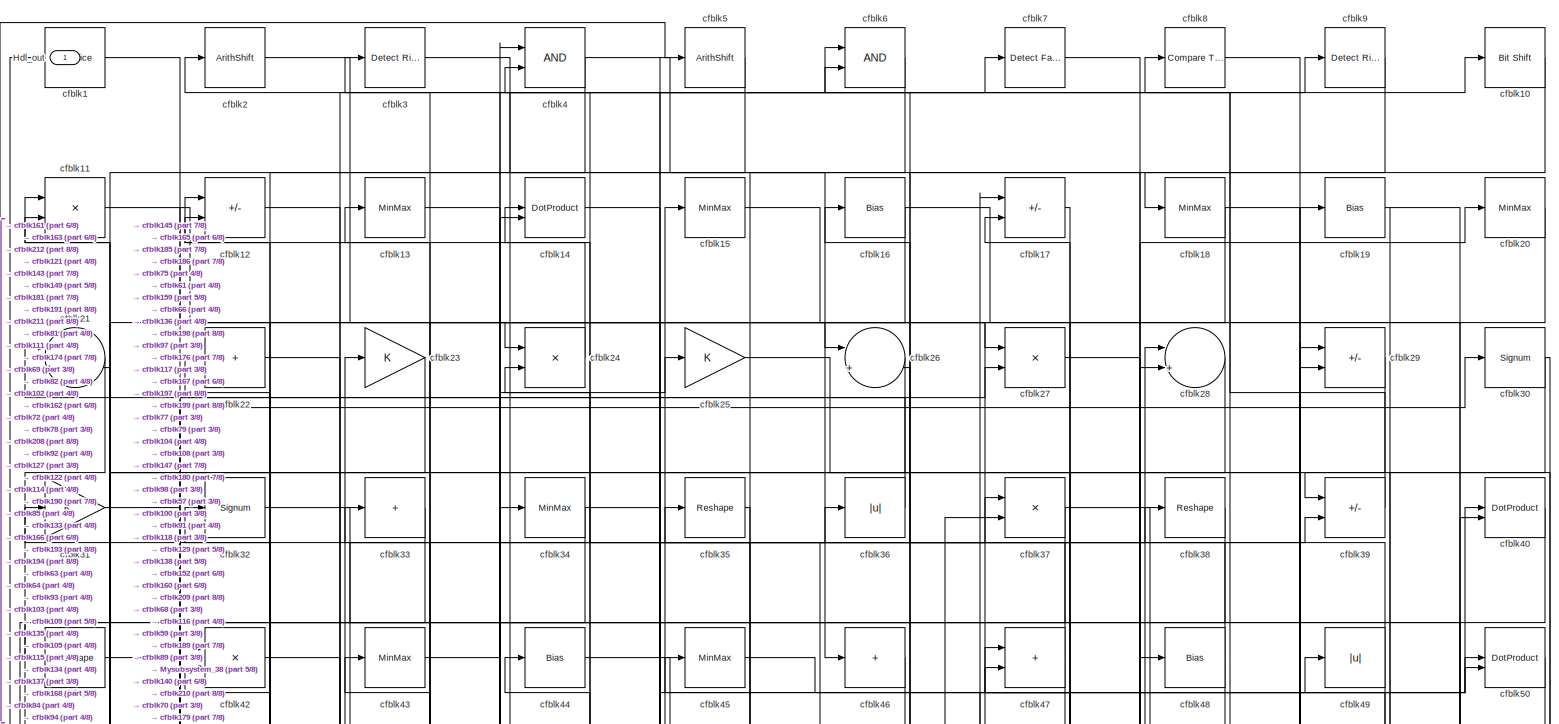
[diagram: root canvas - part 1/8, full width, top band]
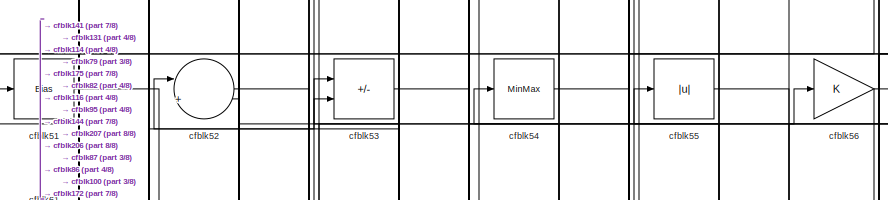
[diagram: root canvas - part 2/8, top left region]
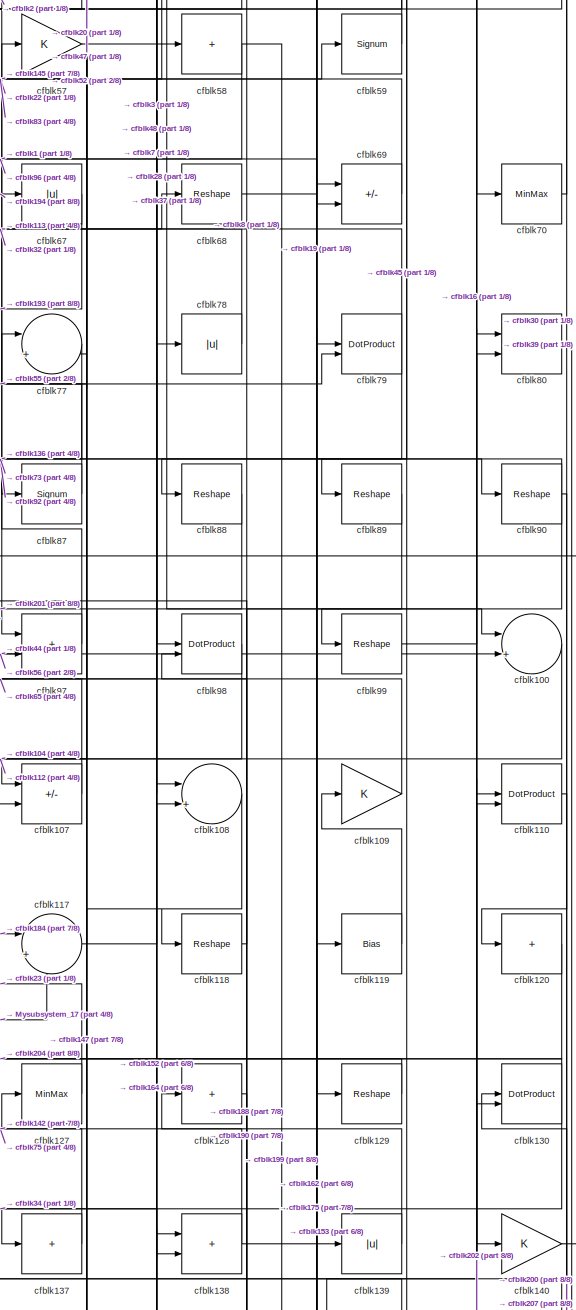
[diagram: root canvas - part 3/8, middle right region]
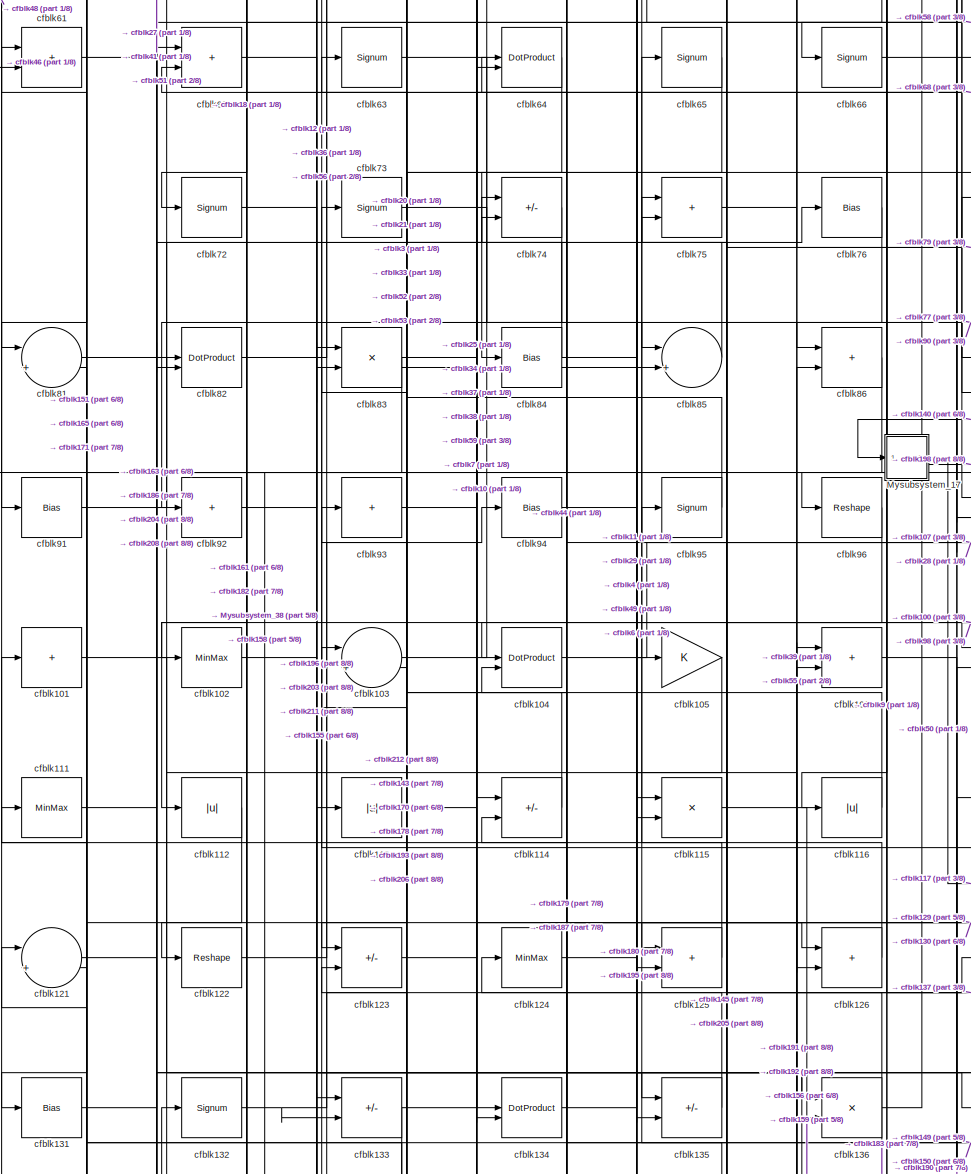
[diagram: root canvas - part 4/8, middle left region]
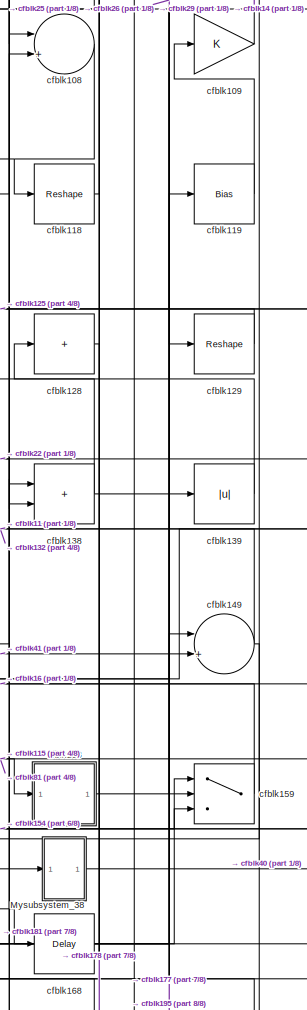
[diagram: root canvas - part 5/8, middle right region]
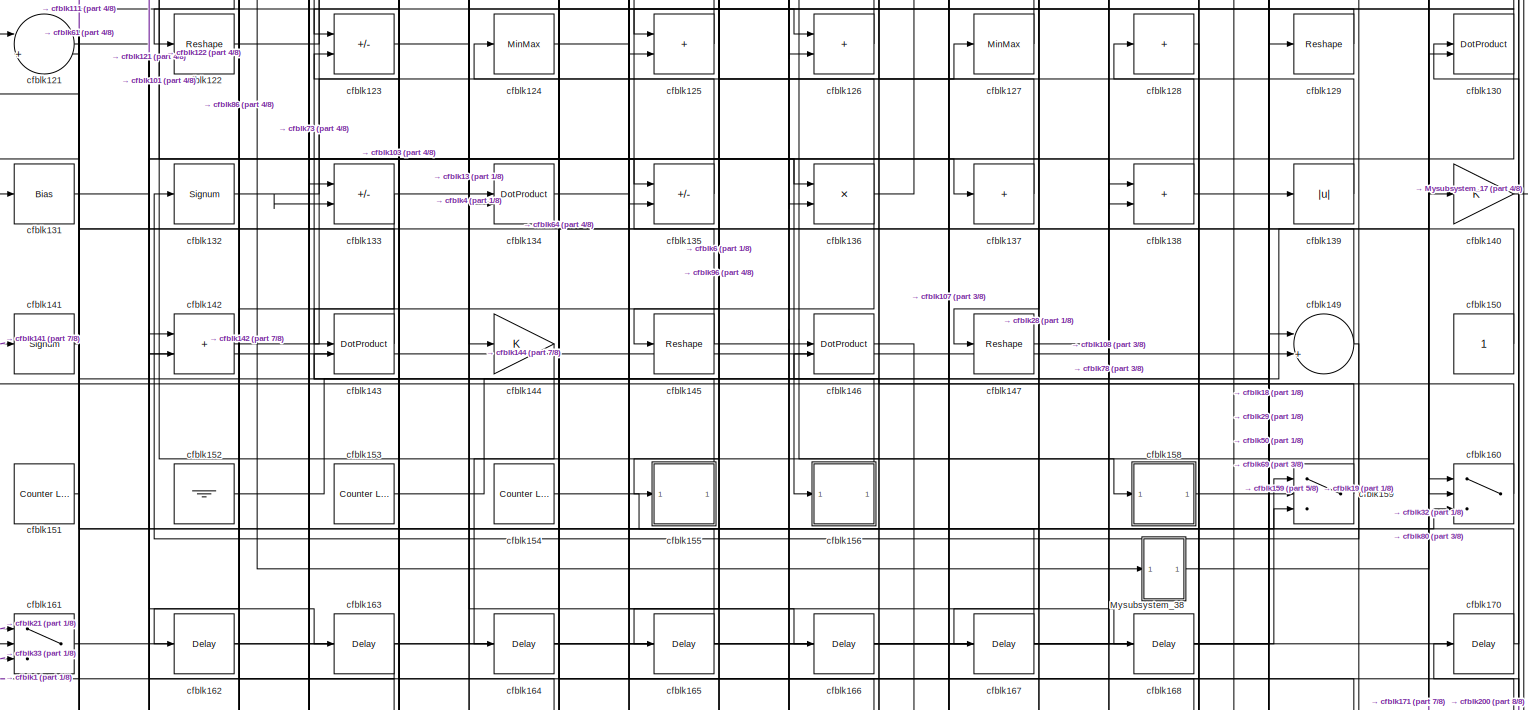
[diagram: root canvas - part 6/8, full width, middle band]
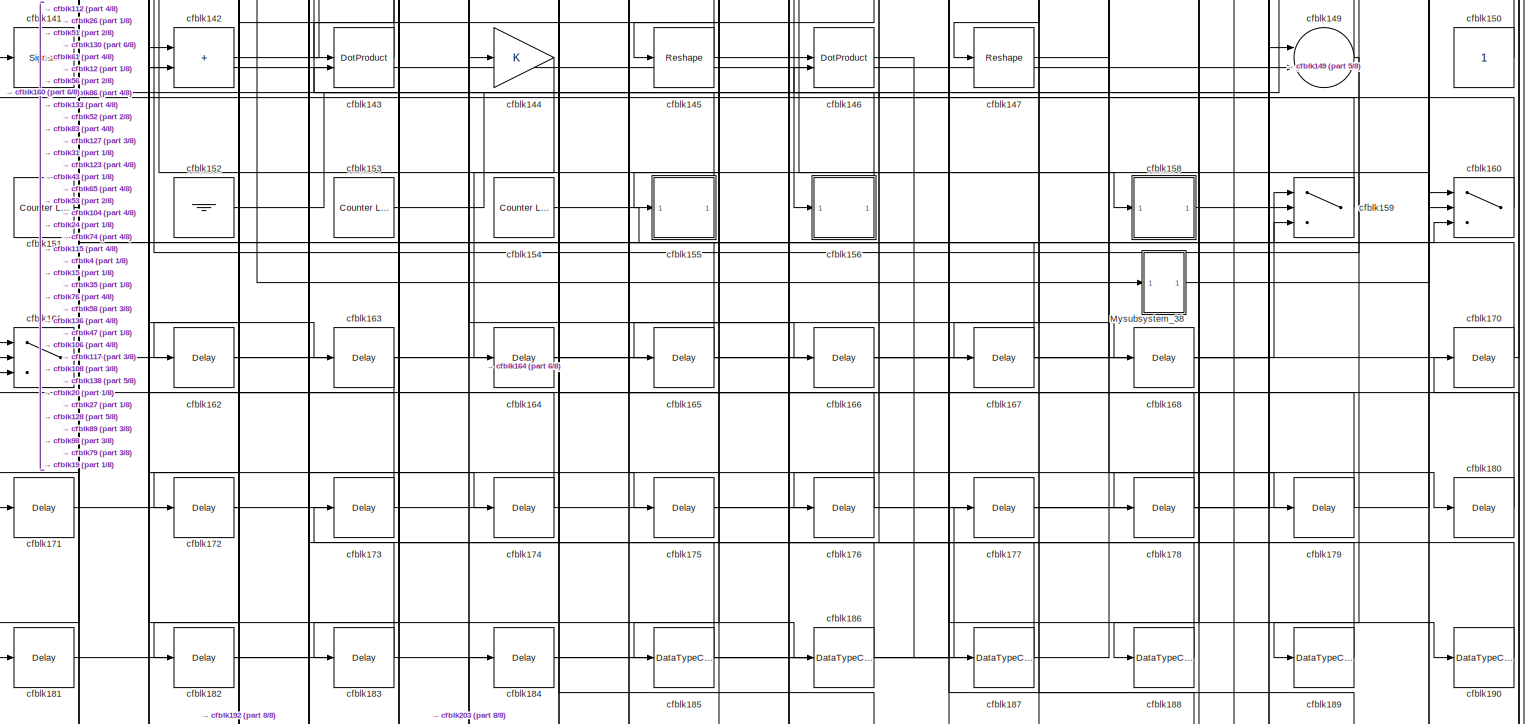
[diagram: root canvas - part 7/8, full width, bottom band]
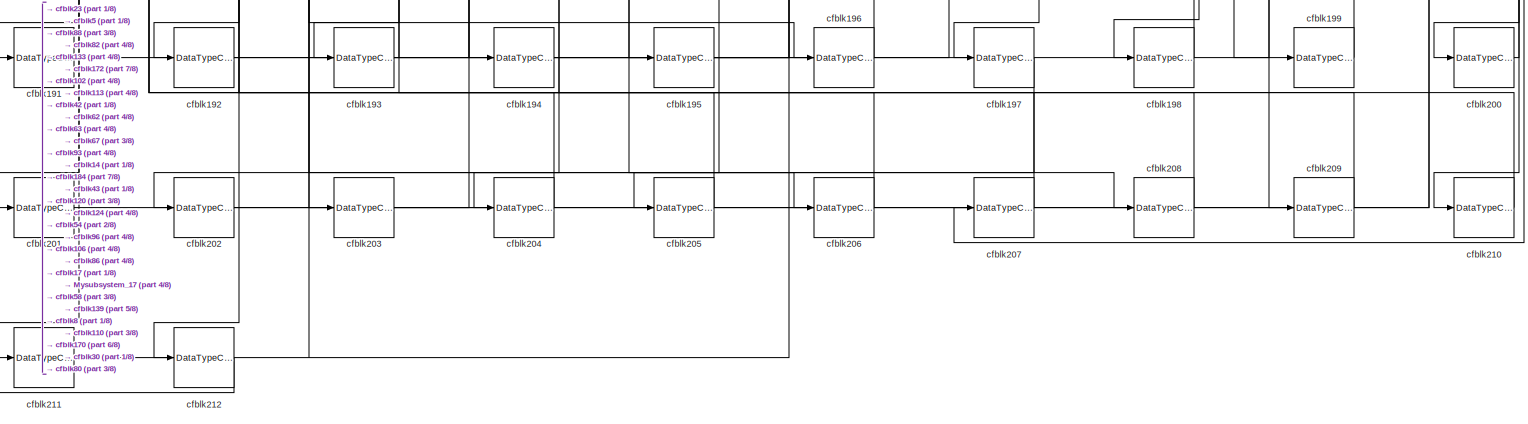
[diagram: root canvas - part 8/8, full width, bottom band]
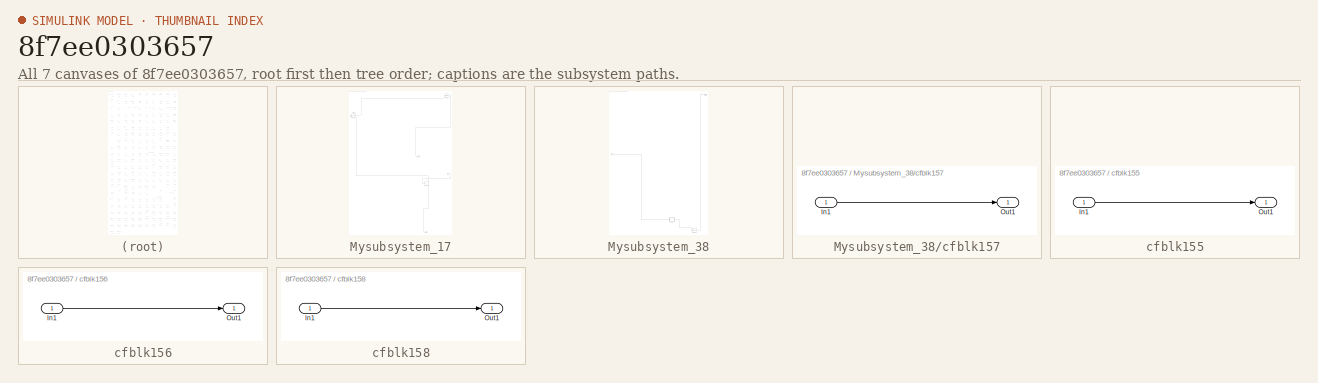
[diagram: thumbnail index - all 7 canvases of the model, root first then tree order]
MODEL slx_8f7ee0303657
KIND model
CONFIG AbsTol = auto
CONFIG EnableMultiTasking = off
CONFIG FixedStep = auto
CONFIG MaxStep = auto
CONFIG MinStep = auto
CONFIG RelTol = 1e-3
CONFIG SampleTimeConstraint = Unconstrained
CONFIG SolverName = VariableStepAuto
CONFIG StartTime = 0.0
CONFIG StopTime = 10.0
BLOCK [Outport] Hdl_out
  OutDataTypeStr = uint8
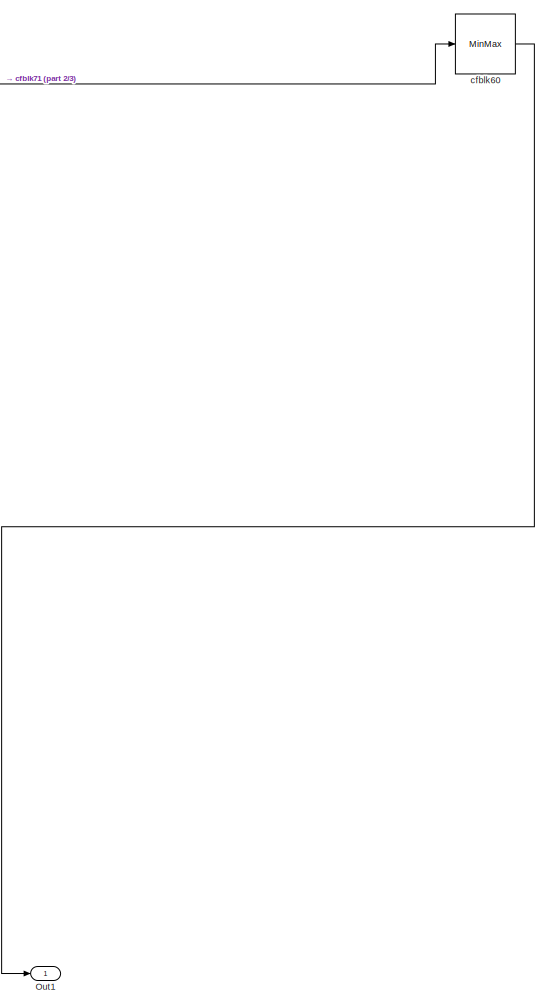
[diagram: Mysubsystem_17 - part 1/3, top right region]
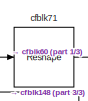
[diagram: Mysubsystem_17 - part 2/3, top left region]
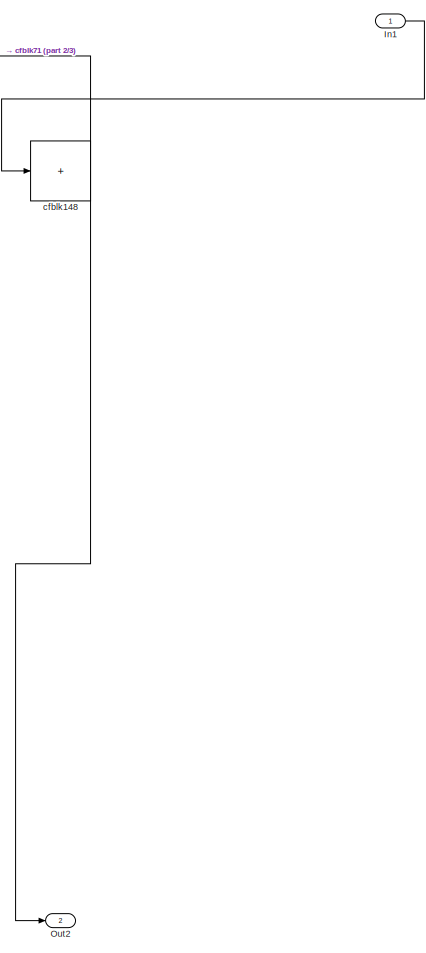
[diagram: Mysubsystem_17 - part 3/3, bottom right region]
BLOCK [SubSystem] Mysubsystem_17
  RTWFcnName = Mysubsystem_17
  RTWFcnNameOpts = User specified
  RTWFileNameOpts = Use function name
  RTWSystemCode = Reusable function
  TreatAsAtomicUnit = on
BLOCK [Inport] Mysubsystem_17/In1
BLOCK [Outport] Mysubsystem_17/Out1
BLOCK [Outport] Mysubsystem_17/Out2
  Port = 2
BLOCK [Sum] Mysubsystem_17/cfblk148
  IconShape = rectangular
  Inputs = +
BLOCK [MinMax] Mysubsystem_17/cfblk60
BLOCK [Reshape] Mysubsystem_17/cfblk71
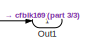
[diagram: Mysubsystem_38 - part 1/3, top right region]
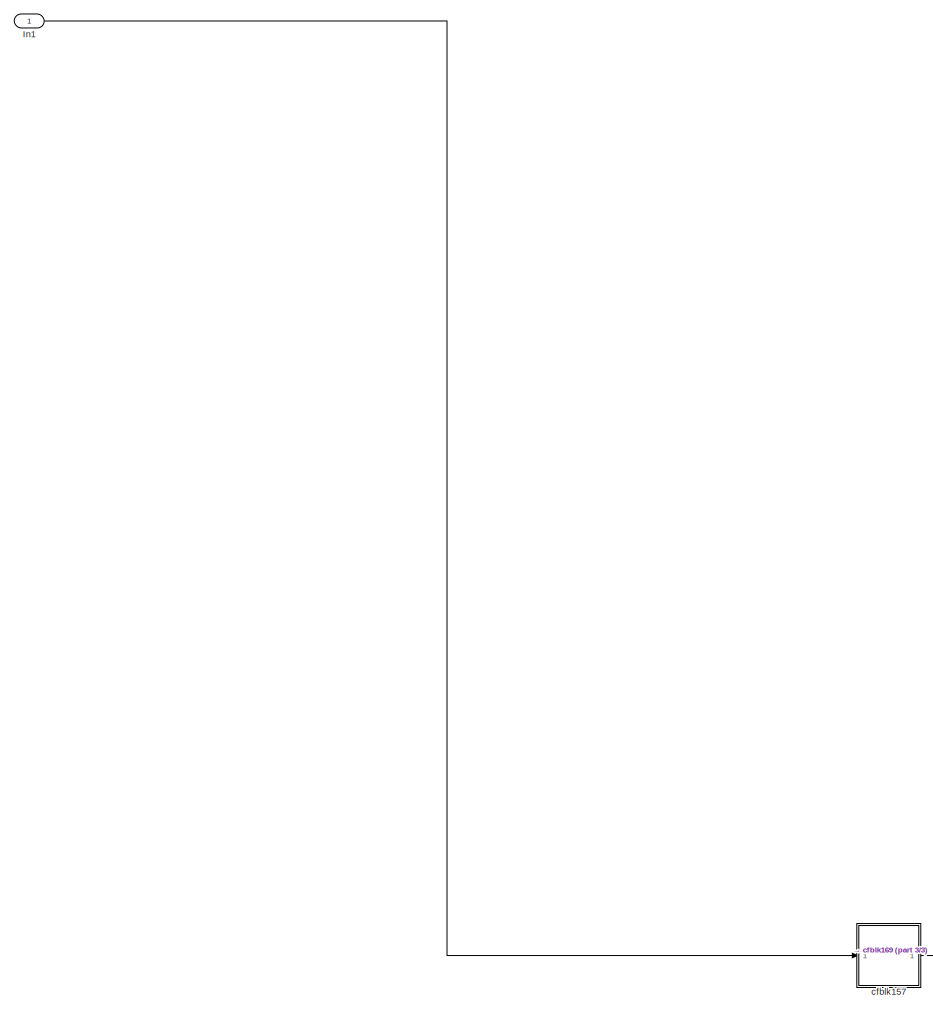
[diagram: Mysubsystem_38 - part 2/3, bottom center region]
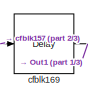
[diagram: Mysubsystem_38 - part 3/3, bottom right region]
BLOCK [SubSystem] Mysubsystem_38
  RTWFcnName = Mysubsystem_38
  RTWFcnNameOpts = User specified
  RTWFileNameOpts = Use function name
  RTWSystemCode = Reusable function
  TreatAsAtomicUnit = on
BLOCK [Inport] Mysubsystem_38/In1
BLOCK [Outport] Mysubsystem_38/Out1
BLOCK [SubSystem] Mysubsystem_38/cfblk157
  LibrarySourceBlock = hdlsllib/Ports &\nSubsystems/Subsystem
BLOCK [Inport] Mysubsystem_38/cfblk157/In1
BLOCK [Outport] Mysubsystem_38/cfblk157/Out1
BLOCK [Delay] Mysubsystem_38/cfblk169
  InputPortMap = u0
  SampleTime = 1
BLOCK [Reference] cfblk1  REF=hdlsllib/Logic and Bit
Operations/Bit Slice
  SourceBlock = hdlsllib/Logic and Bit\nOperations/Bit Slice
  SourceType = Bit Slice
BLOCK [Reference] cfblk10  REF=hdlsllib/Logic and Bit
Operations/Bit Shift
  SourceBlock = hdlsllib/Logic and Bit\nOperations/Bit Shift
  SourceType = Bit Shift
BLOCK [Sum] cfblk100
  Inputs = |++
  OutDataTypeStr = uint8
BLOCK [Sum] cfblk101
  IconShape = rectangular
  Inputs = +
  OutDataTypeStr = uint8
BLOCK [MinMax] cfblk102
  OutDataTypeStr = uint8
BLOCK [Sum] cfblk103
  Inputs = |++
  OutDataTypeStr = uint8
BLOCK [DotProduct] cfblk104
  OutDataTypeStr = uint8
BLOCK [Gain] cfblk105
  OutDataTypeStr = uint8
BLOCK [Sum] cfblk106
  IconShape = rectangular
  OutDataTypeStr = uint8
BLOCK [Sum] cfblk107
  IconShape = rectangular
  Inputs = +-
  OutDataTypeStr = uint8
BLOCK [Sum] cfblk108
  Inputs = |++
  OutDataTypeStr = uint8
BLOCK [Gain] cfblk109
  OutDataTypeStr = uint8
BLOCK [Product] cfblk11
  Inputs = */
  OutDataTypeStr = uint8
  RndMeth = Zero
  SaturateOnIntegerOverflow = on
BLOCK [DotProduct] cfblk110
  OutDataTypeStr = uint8
BLOCK [MinMax] cfblk111
  OutDataTypeStr = uint8
BLOCK [Abs] cfblk112
  OutDataTypeStr = uint8
  SaturateOnIntegerOverflow = off
BLOCK [Abs] cfblk113
  OutDataTypeStr = uint8
  SaturateOnIntegerOverflow = off
BLOCK [Sum] cfblk114
  IconShape = rectangular
  Inputs = +-
  OutDataTypeStr = uint8
BLOCK [Product] cfblk115
  Inputs = */
  OutDataTypeStr = uint8
  RndMeth = Zero
  SaturateOnIntegerOverflow = on
BLOCK [Abs] cfblk116
  OutDataTypeStr = uint8
  SaturateOnIntegerOverflow = off
BLOCK [Sum] cfblk117
  Inputs = |++
  OutDataTypeStr = uint8
BLOCK [Reshape] cfblk118
BLOCK [Bias] cfblk119
  Bias = 0.0
  SaturateOnIntegerOverflow = off
BLOCK [Sum] cfblk12
  IconShape = rectangular
  Inputs = +-
  OutDataTypeStr = uint8
BLOCK [Sum] cfblk120
  IconShape = rectangular
  Inputs = +
  OutDataTypeStr = uint8
BLOCK [Sum] cfblk121
  Inputs = |++
  OutDataTypeStr = uint8
BLOCK [Reshape] cfblk122
BLOCK [Sum] cfblk123
  IconShape = rectangular
  Inputs = +-
  OutDataTypeStr = uint8
BLOCK [MinMax] cfblk124
  OutDataTypeStr = uint8
BLOCK [Sum] cfblk125
  IconShape = rectangular
  OutDataTypeStr = uint8
BLOCK [Sum] cfblk126
  IconShape = rectangular
  OutDataTypeStr = uint8
BLOCK [MinMax] cfblk127
  OutDataTypeStr = uint8
BLOCK [Sum] cfblk128
  IconShape = rectangular
  Inputs = +
  OutDataTypeStr = uint8
BLOCK [Reshape] cfblk129
BLOCK [MinMax] cfblk13
  OutDataTypeStr = uint8
BLOCK [DotProduct] cfblk130
  OutDataTypeStr = uint8
BLOCK [Bias] cfblk131
  Bias = 0.0
  SaturateOnIntegerOverflow = off
BLOCK [Signum] cfblk132
BLOCK [Sum] cfblk133
  IconShape = rectangular
  Inputs = +-
  OutDataTypeStr = uint8
BLOCK [DotProduct] cfblk134
  OutDataTypeStr = uint8
BLOCK [Sum] cfblk135
  IconShape = rectangular
  Inputs = +-
  OutDataTypeStr = uint8
BLOCK [Product] cfblk136
  Inputs = */
  OutDataTypeStr = uint8
  RndMeth = Zero
  SaturateOnIntegerOverflow = on
BLOCK [Sum] cfblk137
  IconShape = rectangular
  Inputs = +
  OutDataTypeStr = uint8
BLOCK [Sum] cfblk138
  IconShape = rectangular
  OutDataTypeStr = uint8
BLOCK [Abs] cfblk139
  OutDataTypeStr = uint8
  SaturateOnIntegerOverflow = off
BLOCK [DotProduct] cfblk14
  OutDataTypeStr = uint8
BLOCK [Gain] cfblk140
  OutDataTypeStr = uint8
BLOCK [Signum] cfblk141
BLOCK [Sum] cfblk142
  IconShape = rectangular
  OutDataTypeStr = uint8
BLOCK [DotProduct] cfblk143
  OutDataTypeStr = uint8
BLOCK [Gain] cfblk144
  OutDataTypeStr = uint8
BLOCK [Reshape] cfblk145
BLOCK [DotProduct] cfblk146
  OutDataTypeStr = uint8
BLOCK [Reshape] cfblk147
BLOCK [Sum] cfblk149
  Inputs = |++
  OutDataTypeStr = uint8
BLOCK [MinMax] cfblk15
  OutDataTypeStr = uint8
BLOCK [Constant] cfblk150
  OutDataTypeStr = uint8
  SampleTime = -1
BLOCK [Reference] cfblk151  REF=hdlsllib/Sources/Counter
Limited
  SourceBlock = hdlsllib/Sources/Counter\nLimited
  SourceType = Counter Limited
BLOCK [Ground] cfblk152
BLOCK [Reference] cfblk153  REF=hdlsllib/Sources/Counter
Limited
  SourceBlock = hdlsllib/Sources/Counter\nLimited
  SourceType = Counter Limited
BLOCK [Reference] cfblk154  REF=hdlsllib/Sources/Counter
Limited
  SourceBlock = hdlsllib/Sources/Counter\nLimited
  SourceType = Counter Limited
BLOCK [SubSystem] cfblk155
  LibrarySourceBlock = hdlsllib/Ports &\nSubsystems/Subsystem
BLOCK [Inport] cfblk155/In1
BLOCK [Outport] cfblk155/Out1
BLOCK [SubSystem] cfblk156
  LibrarySourceBlock = hdlsllib/Ports &\nSubsystems/Subsystem
BLOCK [Inport] cfblk156/In1
BLOCK [Outport] cfblk156/Out1
BLOCK [SubSystem] cfblk158
  LibrarySourceBlock = hdlsllib/Ports &\nSubsystems/Subsystem
BLOCK [Inport] cfblk158/In1
BLOCK [Outport] cfblk158/Out1
BLOCK [Switch] cfblk159
  InputSameDT = off
  OutDataTypeStr = uint8
  SaturateOnIntegerOverflow = off
BLOCK [Bias] cfblk16
  Bias = 0.0
  SaturateOnIntegerOverflow = off
BLOCK [Switch] cfblk160
  InputSameDT = off
  OutDataTypeStr = uint8
  SaturateOnIntegerOverflow = off
BLOCK [Switch] cfblk161
  InputSameDT = off
  OutDataTypeStr = uint8
  SaturateOnIntegerOverflow = off
BLOCK [Delay] cfblk162
  InputPortMap = u0
  SampleTime = 1
BLOCK [Delay] cfblk163
  InputPortMap = u0
  SampleTime = 1
BLOCK [Delay] cfblk164
  InputPortMap = u0
  SampleTime = 1
BLOCK [Delay] cfblk165
  InputPortMap = u0
  SampleTime = 1
BLOCK [Delay] cfblk166
  InputPortMap = u0
  SampleTime = 1
BLOCK [Delay] cfblk167
  InputPortMap = u0
  SampleTime = 1
BLOCK [Delay] cfblk168
  InputPortMap = u0
  SampleTime = 1
BLOCK [Sum] cfblk17
  IconShape = rectangular
  Inputs = +-
  OutDataTypeStr = uint8
BLOCK [Delay] cfblk170
  InputPortMap = u0
  SampleTime = 1
BLOCK [Delay] cfblk171
  InputPortMap = u0
  SampleTime = 1
BLOCK [Delay] cfblk172
  InputPortMap = u0
  SampleTime = 1
BLOCK [Delay] cfblk173
  InputPortMap = u0
  SampleTime = 1
BLOCK [Delay] cfblk174
  InputPortMap = u0
  SampleTime = 1
BLOCK [Delay] cfblk175
  InputPortMap = u0
  SampleTime = 1
BLOCK [Delay] cfblk176
  InputPortMap = u0
  SampleTime = 1
BLOCK [Delay] cfblk177
  InputPortMap = u0
  SampleTime = 1
BLOCK [Delay] cfblk178
  InputPortMap = u0
  SampleTime = 1
BLOCK [Delay] cfblk179
  InputPortMap = u0
  SampleTime = 1
BLOCK [MinMax] cfblk18
  OutDataTypeStr = uint8
BLOCK [Delay] cfblk180
  InputPortMap = u0
  SampleTime = 1
BLOCK [Delay] cfblk181
  InputPortMap = u0
  SampleTime = 1
BLOCK [Delay] cfblk182
  InputPortMap = u0
  SampleTime = 1
BLOCK [Delay] cfblk183
  InputPortMap = u0
  SampleTime = 1
BLOCK [Delay] cfblk184
  InputPortMap = u0
  SampleTime = 1
BLOCK [DataTypeConversion] cfblk185
  OutDataTypeStr = uint8
  RndMeth = Floor
  SaturateOnIntegerOverflow = off
BLOCK [DataTypeConversion] cfblk186
  OutDataTypeStr = uint8
  RndMeth = Floor
  SaturateOnIntegerOverflow = off
BLOCK [DataTypeConversion] cfblk187
  OutDataTypeStr = uint8
  RndMeth = Floor
  SaturateOnIntegerOverflow = off
BLOCK [DataTypeConversion] cfblk188
  OutDataTypeStr = uint8
  RndMeth = Floor
  SaturateOnIntegerOverflow = off
BLOCK [DataTypeConversion] cfblk189
  OutDataTypeStr = uint8
  RndMeth = Floor
  SaturateOnIntegerOverflow = off
BLOCK [Bias] cfblk19
  Bias = 0.0
  SaturateOnIntegerOverflow = off
BLOCK [DataTypeConversion] cfblk190
  OutDataTypeStr = uint8
  RndMeth = Floor
  SaturateOnIntegerOverflow = off
BLOCK [DataTypeConversion] cfblk191
  OutDataTypeStr = uint8
  RndMeth = Floor
  SaturateOnIntegerOverflow = off
BLOCK [DataTypeConversion] cfblk192
  OutDataTypeStr = uint8
  RndMeth = Floor
  SaturateOnIntegerOverflow = off
BLOCK [DataTypeConversion] cfblk193
  OutDataTypeStr = uint8
  RndMeth = Floor
  SaturateOnIntegerOverflow = off
BLOCK [DataTypeConversion] cfblk194
  OutDataTypeStr = uint8
  RndMeth = Floor
  SaturateOnIntegerOverflow = off
BLOCK [DataTypeConversion] cfblk195
  OutDataTypeStr = uint8
  RndMeth = Floor
  SaturateOnIntegerOverflow = off
BLOCK [DataTypeConversion] cfblk196
  OutDataTypeStr = uint8
  RndMeth = Floor
  SaturateOnIntegerOverflow = off
BLOCK [DataTypeConversion] cfblk197
  OutDataTypeStr = uint8
  RndMeth = Floor
  SaturateOnIntegerOverflow = off
BLOCK [DataTypeConversion] cfblk198
  OutDataTypeStr = uint8
  RndMeth = Floor
  SaturateOnIntegerOverflow = off
BLOCK [DataTypeConversion] cfblk199
  OutDataTypeStr = uint8
  RndMeth = Floor
  SaturateOnIntegerOverflow = off
BLOCK [ArithShift] cfblk2
  BitShiftNumber = 8
  InputPortMap = u0
BLOCK [MinMax] cfblk20
  OutDataTypeStr = uint8
BLOCK [DataTypeConversion] cfblk200
  OutDataTypeStr = uint8
  RndMeth = Floor
  SaturateOnIntegerOverflow = off
BLOCK [DataTypeConversion] cfblk201
  OutDataTypeStr = uint8
  RndMeth = Floor
  SaturateOnIntegerOverflow = off
BLOCK [DataTypeConversion] cfblk202
  OutDataTypeStr = uint8
  RndMeth = Floor
  SaturateOnIntegerOverflow = off
BLOCK [DataTypeConversion] cfblk203
  OutDataTypeStr = uint8
  RndMeth = Floor
  SaturateOnIntegerOverflow = off
BLOCK [DataTypeConversion] cfblk204
  OutDataTypeStr = uint8
  RndMeth = Floor
  SaturateOnIntegerOverflow = off
BLOCK [DataTypeConversion] cfblk205
  OutDataTypeStr = uint8
  RndMeth = Floor
  SaturateOnIntegerOverflow = off
BLOCK [DataTypeConversion] cfblk206
  OutDataTypeStr = uint8
  RndMeth = Floor
  SaturateOnIntegerOverflow = off
BLOCK [DataTypeConversion] cfblk207
  OutDataTypeStr = uint8
  RndMeth = Floor
  SaturateOnIntegerOverflow = off
BLOCK [DataTypeConversion] cfblk208
  OutDataTypeStr = uint8
  RndMeth = Floor
  SaturateOnIntegerOverflow = off
BLOCK [DataTypeConversion] cfblk209
  OutDataTypeStr = uint8
  RndMeth = Floor
  SaturateOnIntegerOverflow = off
BLOCK [Sum] cfblk21
  Inputs = |++
  OutDataTypeStr = uint8
BLOCK [DataTypeConversion] cfblk210
  OutDataTypeStr = uint8
  RndMeth = Floor
  SaturateOnIntegerOverflow = off
BLOCK [DataTypeConversion] cfblk211
  OutDataTypeStr = uint8
  RndMeth = Floor
  SaturateOnIntegerOverflow = off
BLOCK [DataTypeConversion] cfblk212
  OutDataTypeStr = uint8
  RndMeth = Floor
  SaturateOnIntegerOverflow = off
BLOCK [Sum] cfblk22
  IconShape = rectangular
  Inputs = +
  OutDataTypeStr = uint8
BLOCK [Gain] cfblk23
  OutDataTypeStr = uint8
BLOCK [Product] cfblk24
  Inputs = */
  OutDataTypeStr = uint8
  RndMeth = Zero
  SaturateOnIntegerOverflow = on
BLOCK [Gain] cfblk25
  OutDataTypeStr = uint8
BLOCK [Sum] cfblk26
  Inputs = |++
  OutDataTypeStr = uint8
BLOCK [Product] cfblk27
  Inputs = */
  OutDataTypeStr = uint8
  RndMeth = Zero
  SaturateOnIntegerOverflow = on
BLOCK [Sum] cfblk28
  Inputs = |++
  OutDataTypeStr = uint8
BLOCK [Sum] cfblk29
  IconShape = rectangular
  Inputs = +-
  OutDataTypeStr = uint8
BLOCK [Reference] cfblk3  REF=hdlsllib/Logic and Bit
Operations/Detect Rise
Positive
  SourceBlock = hdlsllib/Logic and Bit\nOperations/Detect Rise\nPositive
  SourceType = Detect Rise Positive
BLOCK [Signum] cfblk30
BLOCK [Gain] cfblk31
  OutDataTypeStr = uint8
BLOCK [Signum] cfblk32
BLOCK [Sum] cfblk33
  IconShape = rectangular
  Inputs = +
  OutDataTypeStr = uint8
BLOCK [MinMax] cfblk34
  OutDataTypeStr = uint8
BLOCK [Reshape] cfblk35
BLOCK [Abs] cfblk36
  OutDataTypeStr = uint8
  SaturateOnIntegerOverflow = off
BLOCK [Product] cfblk37
  Inputs = */
  OutDataTypeStr = uint8
  RndMeth = Zero
  SaturateOnIntegerOverflow = on
BLOCK [Reshape] cfblk38
BLOCK [Sum] cfblk39
  IconShape = rectangular
  Inputs = +-
  OutDataTypeStr = uint8
BLOCK [Logic] cfblk4
  AllPortsSameDT = off
  OutDataTypeStr = boolean
BLOCK [DotProduct] cfblk40
  OutDataTypeStr = uint8
BLOCK [Reshape] cfblk41
BLOCK [Product] cfblk42
  Inputs = */
  OutDataTypeStr = uint8
  RndMeth = Zero
  SaturateOnIntegerOverflow = on
BLOCK [MinMax] cfblk43
  OutDataTypeStr = uint8
BLOCK [Bias] cfblk44
  Bias = 0.0
  SaturateOnIntegerOverflow = off
BLOCK [MinMax] cfblk45
  OutDataTypeStr = uint8
BLOCK [Sum] cfblk46
  IconShape = rectangular
  Inputs = +
  OutDataTypeStr = uint8
BLOCK [Sum] cfblk47
  IconShape = rectangular
  OutDataTypeStr = uint8
BLOCK [Bias] cfblk48
  Bias = 0.0
  SaturateOnIntegerOverflow = off
BLOCK [Abs] cfblk49
  OutDataTypeStr = uint8
  SaturateOnIntegerOverflow = off
BLOCK [ArithShift] cfblk5
  BitShiftNumber = 8
  InputPortMap = u0
BLOCK [DotProduct] cfblk50
  OutDataTypeStr = uint8
BLOCK [Bias] cfblk51
  Bias = 0.0
  SaturateOnIntegerOverflow = off
BLOCK [Sum] cfblk52
  Inputs = |++
  OutDataTypeStr = uint8
BLOCK [Sum] cfblk53
  IconShape = rectangular
  Inputs = +-
  OutDataTypeStr = uint8
BLOCK [MinMax] cfblk54
  OutDataTypeStr = uint8
BLOCK [Abs] cfblk55
  OutDataTypeStr = uint8
  SaturateOnIntegerOverflow = off
BLOCK [Gain] cfblk56
  OutDataTypeStr = uint8
BLOCK [Gain] cfblk57
  OutDataTypeStr = uint8
BLOCK [Sum] cfblk58
  IconShape = rectangular
  Inputs = +
  OutDataTypeStr = uint8
BLOCK [Signum] cfblk59
BLOCK [Logic] cfblk6
  AllPortsSameDT = off
  OutDataTypeStr = boolean
BLOCK [Sum] cfblk61
  IconShape = rectangular
  OutDataTypeStr = uint8
BLOCK [Sum] cfblk62
  IconShape = rectangular
  OutDataTypeStr = uint8
BLOCK [Signum] cfblk63
BLOCK [DotProduct] cfblk64
  OutDataTypeStr = uint8
BLOCK [Signum] cfblk65
BLOCK [Signum] cfblk66
BLOCK [Abs] cfblk67
  OutDataTypeStr = uint8
  SaturateOnIntegerOverflow = off
BLOCK [Reshape] cfblk68
BLOCK [Sum] cfblk69
  IconShape = rectangular
  Inputs = +-
  OutDataTypeStr = uint8
BLOCK [Reference] cfblk7  REF=hdlsllib/Logic and Bit
Operations/Detect Fall
Nonpositive
  SourceBlock = hdlsllib/Logic and Bit\nOperations/Detect Fall\nNonpositive
  SourceType = Detect Fall Nonpositive
BLOCK [MinMax] cfblk70
  OutDataTypeStr = uint8
BLOCK [Signum] cfblk72
BLOCK [Signum] cfblk73
BLOCK [Sum] cfblk74
  IconShape = rectangular
  Inputs = +-
  OutDataTypeStr = uint8
BLOCK [Sum] cfblk75
  IconShape = rectangular
  OutDataTypeStr = uint8
BLOCK [Bias] cfblk76
  Bias = 0.0
  SaturateOnIntegerOverflow = off
BLOCK [Sum] cfblk77
  Inputs = |++
  OutDataTypeStr = uint8
BLOCK [Abs] cfblk78
  OutDataTypeStr = uint8
  SaturateOnIntegerOverflow = off
BLOCK [DotProduct] cfblk79
  OutDataTypeStr = uint8
BLOCK [Reference] cfblk8  REF=hdlsllib/Logic and Bit
Operations/Compare
To Constant
  SourceBlock = hdlsllib/Logic and Bit\nOperations/Compare\nTo Constant
  SourceType = Compare To Constant
BLOCK [Product] cfblk80
  Inputs = */
  OutDataTypeStr = uint8
  RndMeth = Zero
  SaturateOnIntegerOverflow = on
BLOCK [Sum] cfblk81
  Inputs = |++
  OutDataTypeStr = uint8
BLOCK [DotProduct] cfblk82
  OutDataTypeStr = uint8
BLOCK [Product] cfblk83
  Inputs = */
  OutDataTypeStr = uint8
  RndMeth = Zero
  SaturateOnIntegerOverflow = on
BLOCK [Bias] cfblk84
  Bias = 0.0
  SaturateOnIntegerOverflow = off
BLOCK [Sum] cfblk85
  Inputs = |++
  OutDataTypeStr = uint8
BLOCK [Sum] cfblk86
  IconShape = rectangular
  OutDataTypeStr = uint8
BLOCK [Signum] cfblk87
BLOCK [Reshape] cfblk88
BLOCK [Reshape] cfblk89
BLOCK [Reference] cfblk9  REF=hdlsllib/Logic and Bit
Operations/Detect Rise
Nonnegative
  SourceBlock = hdlsllib/Logic and Bit\nOperations/Detect Rise\nNonnegative
  SourceType = Detect Rise Nonnegative
BLOCK [Reshape] cfblk90
BLOCK [Bias] cfblk91
  Bias = 0.0
  SaturateOnIntegerOverflow = off
BLOCK [Sum] cfblk92
  IconShape = rectangular
  Inputs = +
  OutDataTypeStr = uint8
BLOCK [Sum] cfblk93
  IconShape = rectangular
  Inputs = +
  OutDataTypeStr = uint8
BLOCK [Bias] cfblk94
  Bias = 0.0
  SaturateOnIntegerOverflow = off
BLOCK [Signum] cfblk95
BLOCK [Reshape] cfblk96
BLOCK [Sum] cfblk97
  IconShape = rectangular
  OutDataTypeStr = uint8
BLOCK [DotProduct] cfblk98
  OutDataTypeStr = uint8
BLOCK [Reshape] cfblk99
LINE Mysubsystem_17/In1:1 -> Mysubsystem_17/cfblk148:1
NET Mysubsystem_17/cfblk148:1 -> Mysubsystem_17/Out2:1, Mysubsystem_17/cfblk71:1
LINE Mysubsystem_17/cfblk60:1 -> Mysubsystem_17/Out1:1
LINE Mysubsystem_17/cfblk71:1 -> Mysubsystem_17/cfblk60:1
LINE Mysubsystem_17:1 -> cfblk117:2
LINE Mysubsystem_17:2 -> cfblk198:1
LINE Mysubsystem_38/In1:1 -> Mysubsystem_38/cfblk157:1
LINE Mysubsystem_38/cfblk157/In1:1 -> Mysubsystem_38/cfblk157/Out1:1
LINE Mysubsystem_38/cfblk157:1 -> Mysubsystem_38/cfblk169:1
LINE Mysubsystem_38/cfblk169:1 -> Mysubsystem_38/Out1:1
LINE Mysubsystem_38:1 -> cfblk40:2
LINE cfblk100:1 -> cfblk112:1
NET cfblk101:1 -> cfblk126:2, cfblk156:1
LINE cfblk102:1 -> cfblk196:1
LINE cfblk103:1 -> cfblk10:1
LINE cfblk104:1 -> cfblk28:2
LINE cfblk105:1 -> cfblk125:2
LINE cfblk106:1 -> cfblk190:1
LINE cfblk107:1 -> cfblk65:1
NET cfblk108:1 -> cfblk118:1, cfblk147:1
LINE cfblk109:1 -> cfblk14:1
LINE cfblk10:1 -> cfblk18:1
LINE cfblk110:1 -> cfblk200:1
LINE cfblk111:1 -> cfblk27:2
LINE cfblk112:1 -> cfblk171:1
NET cfblk113:1 -> cfblk134:1, cfblk68:1
LINE cfblk114:1 -> cfblk21:1
LINE cfblk115:1 -> cfblk159:2
LINE cfblk116:1 -> cfblk52:1
NET cfblk117:1 -> cfblk47:2, cfblk48:1, cfblk77:1
LINE cfblk118:1 -> cfblk8:1
LINE cfblk119:1 -> cfblk109:1
NET cfblk11:1 -> cfblk105:1, cfblk26:1
LINE cfblk120:1 -> cfblk204:1
NET cfblk121:1 -> cfblk163:1, cfblk74:1
LINE cfblk122:1 -> cfblk36:1
NET cfblk123:1 -> cfblk126:1, cfblk83:2
LINE cfblk124:1 -> cfblk195:1
LINE cfblk125:1 -> cfblk101:1
LINE cfblk126:1 -> cfblk95:1
LINE cfblk127:1 -> cfblk23:1
LINE cfblk128:1 -> cfblk178:1
LINE cfblk129:1 -> cfblk125:1
LINE cfblk12:1 -> cfblk85:2
NET cfblk130:1 -> cfblk122:1, cfblk142:2
LINE cfblk131:1 -> cfblk53:2
NET cfblk132:1 -> cfblk133:2, cfblk94:1
NET cfblk133:1 -> cfblk212:1, cfblk25:1, cfblk7:1
NET cfblk134:1 -> cfblk114:2, cfblk37:1
LINE cfblk135:1 -> cfblk44:1
NET cfblk136:1 -> cfblk183:1, cfblk37:2, cfblk75:2
LINE cfblk137:1 -> cfblk75:1
NET cfblk138:1 -> cfblk26:2, cfblk29:1
LINE cfblk139:1 -> cfblk128:1
LINE cfblk13:1 -> cfblk166:1
LINE cfblk140:1 -> Mysubsystem_17:1
LINE cfblk141:1 -> cfblk51:1
LINE cfblk142:1 -> cfblk127:1
LINE cfblk143:1 -> cfblk31:1
LINE cfblk144:1 -> cfblk164:1
NET cfblk145:1 -> cfblk15:1, cfblk58:1
LINE cfblk146:1 -> cfblk187:1
LINE cfblk147:1 -> cfblk20:1
NET cfblk149:1 -> cfblk11:1, cfblk132:1
LINE cfblk14:1 -> cfblk168:1
LINE cfblk150:1 -> cfblk64:1
LINE cfblk151:1 -> cfblk61:1
NET cfblk152:1 -> cfblk107:2, cfblk50:2, cfblk78:1
LINE cfblk153:1 -> cfblk80:1
NET cfblk154:1 -> cfblk159:1, cfblk160:3
LINE cfblk155/In1:1 -> cfblk155/Out1:1
LINE cfblk155:1 -> cfblk73:1
LINE cfblk156/In1:1 -> cfblk156/Out1:1
LINE cfblk156:1 -> cfblk111:1
LINE cfblk158/In1:1 -> cfblk158/Out1:1
LINE cfblk158:1 -> cfblk119:1
LINE cfblk159:1 -> cfblk16:1
LINE cfblk15:1 -> cfblk27:1
LINE cfblk160:1 -> cfblk141:1
NET cfblk161:1 -> cfblk130:1, cfblk4:1
LINE cfblk162:1 -> cfblk69:1
LINE cfblk163:1 -> cfblk1:1
LINE cfblk164:1 -> cfblk108:2
LINE cfblk165:1 -> cfblk121:1
LINE cfblk166:1 -> cfblk29:2
LINE cfblk167:1 -> cfblk21:2
LINE cfblk168:1 -> cfblk159:3
NET cfblk16:1 -> cfblk24:1, cfblk70:1
LINE cfblk170:1 -> cfblk103:1
LINE cfblk171:1 -> cfblk130:2
LINE cfblk172:1 -> cfblk192:1
LINE cfblk173:1 -> cfblk142:1
LINE cfblk174:1 -> cfblk12:2
LINE cfblk175:1 -> cfblk79:1
LINE cfblk176:1 -> cfblk24:2
LINE cfblk177:1 -> cfblk149:1
LINE cfblk178:1 -> cfblk123:2
LINE cfblk179:1 -> cfblk74:2
LINE cfblk17:1 -> cfblk197:1
LINE cfblk180:1 -> cfblk115:1
LINE cfblk181:1 -> cfblk138:1
LINE cfblk182:1 -> cfblk133:1
LINE cfblk183:1 -> cfblk83:1
LINE cfblk184:1 -> cfblk117:1
NET cfblk185:1 -> cfblk143:2, cfblk177:1
LINE cfblk186:1 -> cfblk35:1
NET cfblk187:1 -> cfblk104:2, cfblk173:1
LINE cfblk188:1 -> cfblk146:1
LINE cfblk189:1 -> cfblk146:2
NET cfblk18:1 -> cfblk121:2, cfblk160:2, cfblk162:1, cfblk81:2
NET cfblk190:1 -> cfblk43:1, cfblk98:2
LINE cfblk191:1 -> cfblk106:1
LINE cfblk192:1 -> cfblk106:2
NET cfblk193:1 -> cfblk14:2, cfblk93:1
LINE cfblk194:1 -> cfblk67:1
LINE cfblk195:1 -> cfblk139:1
LINE cfblk196:1 -> cfblk124:1
LINE cfblk197:1 -> cfblk202:1
LINE cfblk198:1 -> cfblk17:1
LINE cfblk199:1 -> cfblk17:2
NET cfblk19:1 -> cfblk160:1, cfblk189:1
LINE cfblk1:1 -> cfblk69:2
LINE cfblk200:1 -> cfblk170:1
LINE cfblk201:1 -> cfblk110:1
LINE cfblk202:1 -> cfblk110:2
LINE cfblk203:1 -> cfblk184:1
LINE cfblk204:1 -> cfblk62:1
LINE cfblk205:1 -> cfblk62:2
LINE cfblk206:1 -> cfblk63:1
LINE cfblk207:1 -> cfblk54:1
LINE cfblk208:1 -> cfblk82:1
LINE cfblk209:1 -> cfblk42:1
NET cfblk20:1 -> cfblk103:2, cfblk77:2
LINE cfblk210:1 -> cfblk42:2
NET cfblk211:1 -> cfblk113:1, cfblk86:2
LINE cfblk212:1 -> cfblk5:1
LINE cfblk21:1 -> cfblk161:1
LINE cfblk22:1 -> cfblk138:2
LINE cfblk23:1 -> cfblk191:1
LINE cfblk24:1 -> cfblk12:1
LINE cfblk25:1 -> cfblk129:1
LINE cfblk26:1 -> cfblk181:1
LINE cfblk27:1 -> cfblk180:1
NET cfblk28:1 -> cfblk167:1, cfblk81:1
LINE cfblk29:1 -> cfblk115:2
LINE cfblk2:1 -> cfblk97:1
NET cfblk30:1 -> cfblk210:1, cfblk89:1
NET cfblk31:1 -> cfblk174:1, cfblk30:1
LINE cfblk32:1 -> cfblk140:1
LINE cfblk33:1 -> cfblk161:3
NET cfblk34:1 -> cfblk137:1, cfblk72:1
LINE cfblk35:1 -> cfblk185:1
LINE cfblk36:1 -> cfblk13:1
NET cfblk37:1 -> cfblk100:1, cfblk64:2
NET cfblk38:1 -> cfblk134:2, cfblk82:2
LINE cfblk39:1 -> cfblk2:1
LINE cfblk3:1 -> cfblk108:1
LINE cfblk40:1 -> cfblk41:1
NET cfblk41:1 -> cfblk136:1, cfblk149:2
LINE cfblk42:1 -> cfblk208:1
LINE cfblk43:1 -> cfblk194:1
LINE cfblk44:1 -> cfblk97:2
LINE cfblk45:1 -> cfblk40:1
LINE cfblk46:1 -> cfblk61:2
NET cfblk47:1 -> cfblk176:1, cfblk4:2
NET cfblk48:1 -> cfblk6:2, cfblk91:1
NET cfblk49:1 -> cfblk116:1, cfblk11:2
NET cfblk4:1 -> cfblk102:1, cfblk179:1, cfblk46:1
LINE cfblk50:1 -> cfblk135:2
LINE cfblk51:1 -> cfblk114:1
LINE cfblk52:1 -> cfblk175:1
LINE cfblk53:1 -> cfblk144:1
LINE cfblk54:1 -> cfblk206:1
LINE cfblk55:1 -> cfblk86:1
NET cfblk56:1 -> cfblk100:2, cfblk172:1
LINE cfblk57:1 -> cfblk28:1
NET cfblk58:1 -> cfblk199:1, cfblk96:1
LINE cfblk59:1 -> cfblk45:1
LINE cfblk5:1 -> cfblk211:1
LINE cfblk61:1 -> cfblk186:1
LINE cfblk62:1 -> cfblk203:1
NET cfblk63:1 -> cfblk38:1, cfblk85:1
LINE cfblk64:1 -> cfblk84:1
LINE cfblk65:1 -> cfblk143:1
LINE cfblk66:1 -> cfblk50:1
LINE cfblk67:1 -> cfblk193:1
LINE cfblk68:1 -> cfblk19:1
LINE cfblk69:1 -> cfblk22:1
LINE cfblk6:1 -> cfblk165:1
LINE cfblk70:1 -> cfblk39:1
LINE cfblk72:1 -> cfblk135:1
LINE cfblk73:1 -> cfblk90:1
LINE cfblk74:1 -> cfblk123:1
NET cfblk75:1 -> cfblk39:2, cfblk79:2
LINE cfblk76:1 -> cfblk145:1
NET cfblk77:1 -> cfblk136:2, cfblk92:1
LINE cfblk78:1 -> cfblk32:1
NET cfblk79:1 -> cfblk47:1, cfblk52:2, cfblk88:1
LINE cfblk7:1 -> cfblk98:1
LINE cfblk80:1 -> cfblk207:1
NET cfblk81:1 -> Mysubsystem_38:1, cfblk158:1
LINE cfblk82:1 -> cfblk56:1
NET cfblk83:1 -> cfblk131:1, cfblk59:1
NET cfblk84:1 -> cfblk33:1, cfblk49:1
LINE cfblk85:1 -> cfblk3:1
NET cfblk86:1 -> cfblk161:2, cfblk182:1
LINE cfblk87:1 -> cfblk55:1
NET cfblk88:1 -> cfblk107:1, cfblk201:1
LINE cfblk89:1 -> cfblk188:1
LINE cfblk8:1 -> cfblk209:1
NET cfblk90:1 -> cfblk120:1, cfblk87:1, cfblk99:1
LINE cfblk91:1 -> cfblk76:1
LINE cfblk92:1 -> cfblk9:1
LINE cfblk93:1 -> cfblk34:1
LINE cfblk94:1 -> cfblk6:1
LINE cfblk95:1 -> cfblk53:1
NET cfblk96:1 -> cfblk155:1, cfblk205:1
LINE cfblk97:1 -> cfblk57:1
LINE cfblk98:1 -> cfblk104:1
LINE cfblk99:1 -> cfblk80:2
LINE cfblk9:1 -> cfblk66:1
note: NET lines group one-source signal fan-out (src -> all destinations, sorted); 1:1 wires keep LINE
